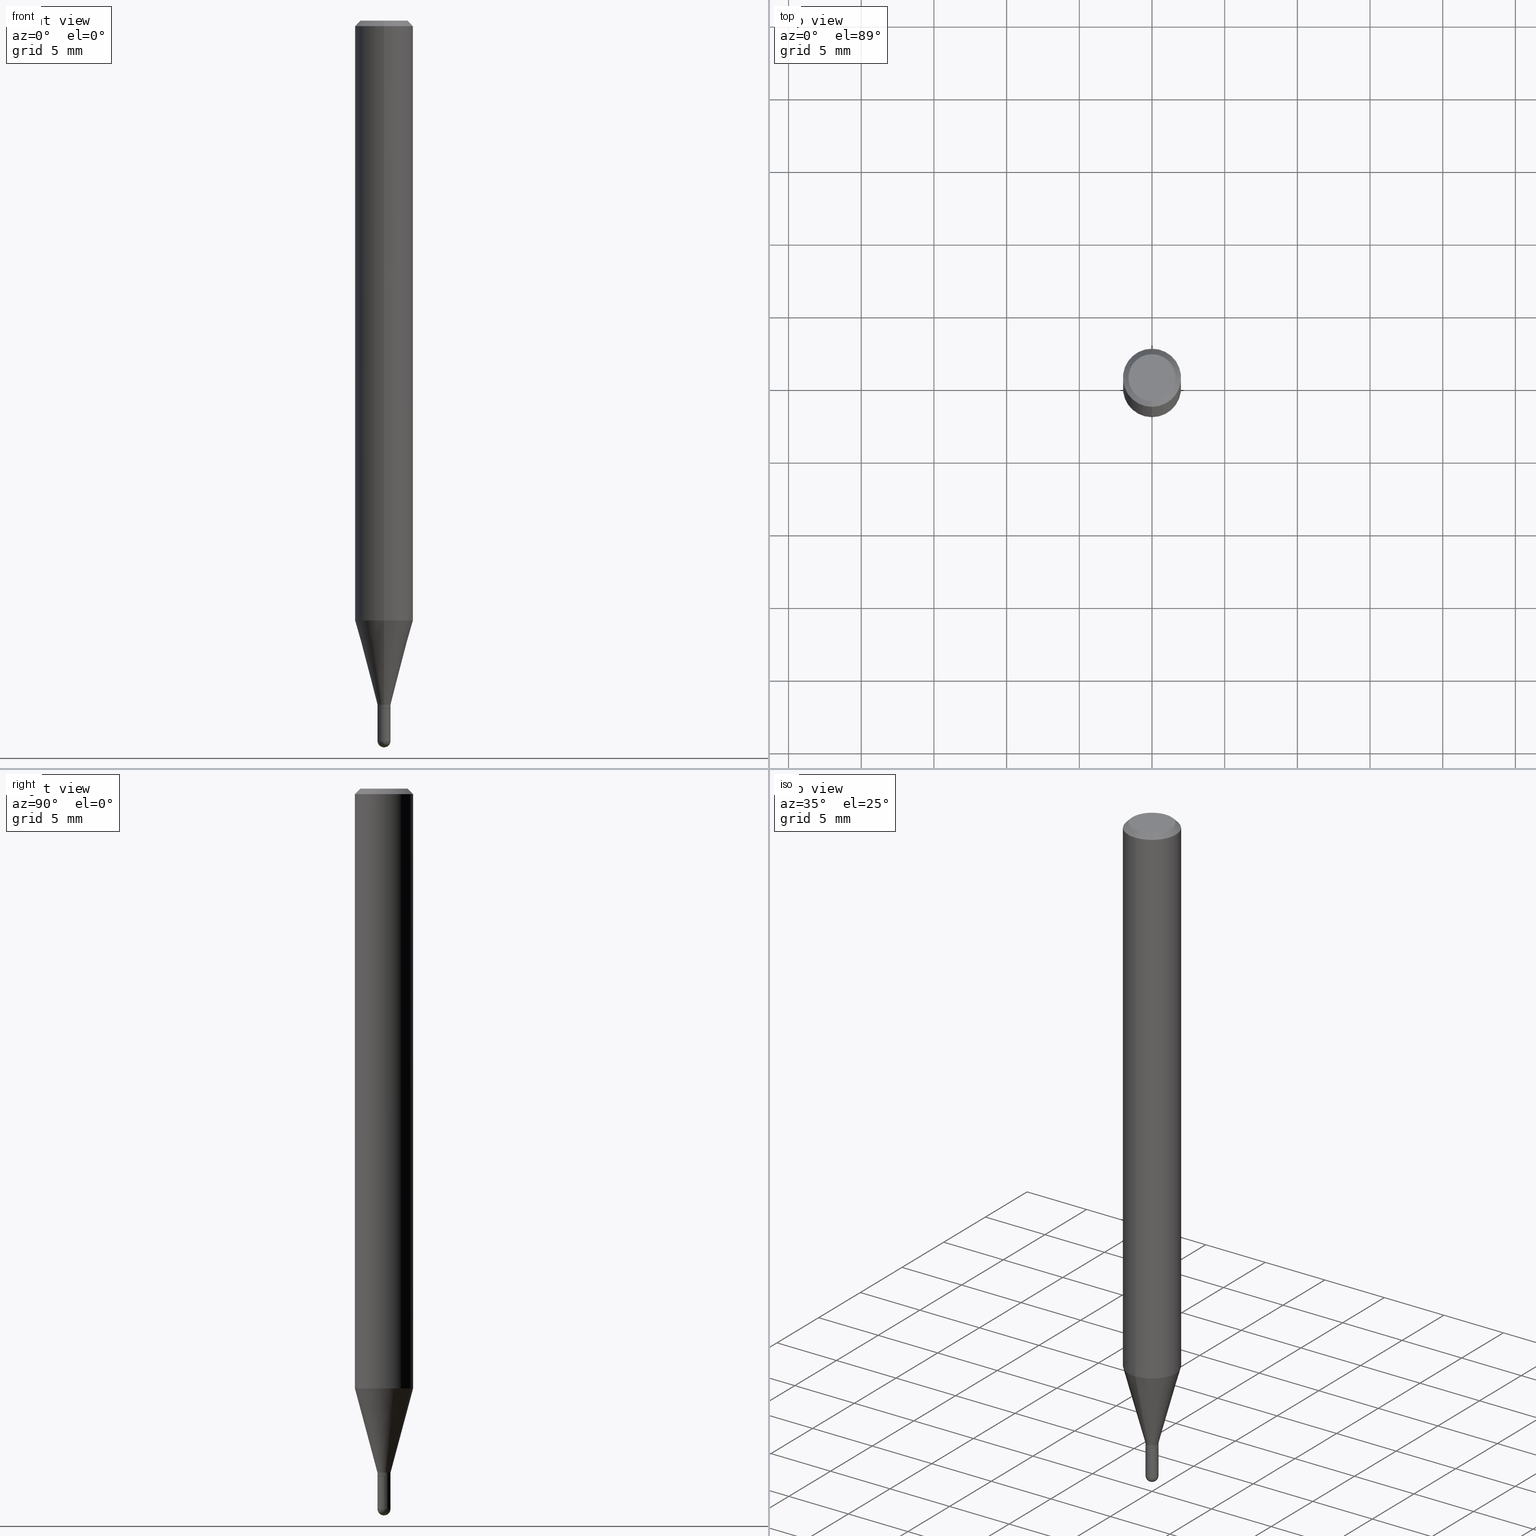
[diagram: canonical four-view strip — front | top / right | iso, engineering-drawing reading convention]
A machine part, canonical four-view strip (front | top / right | iso — engineering-drawing reading convention). The complete STEP part file that produces these views, byte-faithful:
ISO-10303-21;
HEADER;
FILE_DESCRIPTION (( 'STEP AP203' ),
    '1' );
FILE_NAME ('02052.STEP',
    '2024-03-07T20:01:09',
    ( '' ),
    ( '' ),
    'SwSTEP 2.0',
    'SolidWorks 2023',
    '' );
FILE_SCHEMA (( 'CONFIG_CONTROL_DESIGN' ));
ENDSEC;

DATA;
#1 = CARTESIAN_POINT ( 'NONE',  ( -5.749253660339158173E-45, 8.208497746846743478E-31, 2.350994683723575538E-16 ) ) ;
#2 = DIRECTION ( 'NONE',  ( -6.982962677686264344E-15, -1.000000000000000000, 3.491499918598658071E-15 ) ) ;
#3 = DIRECTION ( 'NONE',  ( -2.445455832011205727E-29, 3.491499918598658860E-15, 1.000000000000000000 ) ) ;
#4 = DIRECTION ( 'NONE',  ( -2.445455832011205727E-29, 3.491499918598658860E-15, 1.000000000000000000 ) ) ;
#5 = EDGE_CURVE ( 'NONE', #324, #271, #53, .T. ) ;
#6 =( GEOMETRIC_REPRESENTATION_CONTEXT ( 3 ) GLOBAL_UNCERTAINTY_ASSIGNED_CONTEXT ( ( #355 ) ) GLOBAL_UNIT_ASSIGNED_CONTEXT ( ( #300, #342, #496 ) ) REPRESENTATION_CONTEXT ( 'NONE', 'WORKASPACE' ) );
#7 = ORIENTED_EDGE ( 'NONE', *, *, #509, .F. ) ;
#8 = DIRECTION ( 'NONE',  ( 6.982962677686264344E-15, 1.000000000000000000, -3.496114991891765576E-15 ) ) ;
#9 = EDGE_LOOP ( 'NONE', ( #208, #63, #213, #365, #284 ) ) ;
#10 = APPROVAL_DATE_TIME ( #449, #211 ) ;
#11 = ORIENTED_EDGE ( 'NONE', *, *, #214, .F. ) ;
#12 = AXIS2_PLACEMENT_3D ( 'NONE', #387, #75, #33 ) ;
#13 = CARTESIAN_POINT ( 'NONE',  ( 0.000000000000000000, 0.000000000000000000, 0.000000000000000000 ) ) ;
#14 = LOCAL_TIME ( 15, 1, 9.000000000000000000, #232 ) ;
#15 = ORIENTED_EDGE ( 'NONE', *, *, #214, .T. ) ;
#16 = LINE ( 'NONE', #411, #176 ) ;
#17 = CARTESIAN_POINT ( 'NONE',  ( 4.553927850371266907E-29, -6.501871148414421797E-15, -1.862199999999999855 ) ) ;
#18 = EDGE_CURVE ( 'NONE', #103, #250, #317, .T. ) ;
#19 = ORIENTED_EDGE ( 'NONE', *, *, #227, .T. ) ;
#20 = EDGE_CURVE ( 'NONE', #512, #138, #277, .T. ) ;
#21 = ORIENTED_EDGE ( 'NONE', *, *, #405, .T. ) ;
#22 = VECTOR ( 'NONE', #116, 39.37007874015748143 ) ;
#23 = FACE_OUTER_BOUND ( 'NONE', #288, .T. ) ;
#24 = VECTOR ( 'NONE', #245, 39.37007874015748854 ) ;
#25 = CARTESIAN_POINT ( 'NONE',  ( 0.01770000000000000046, -6.780107611899503773E-15, -1.950799999999999867 ) ) ;
#26 = DIRECTION ( 'NONE',  ( -2.445455832011205727E-29, 3.491499918598658860E-15, 1.000000000000000000 ) ) ;
#27 = DIRECTION ( 'NONE',  ( 0.000000000000000000, 0.000000000000000000, 1.000000000000000000 ) ) ;
#28 = DIRECTION ( 'NONE',  ( -2.445455832011205727E-29, 3.491499918598658860E-15, 1.000000000000000000 ) ) ;
#29 = DATE_AND_TIME ( #394, #397 ) ;
#30 = VECTOR ( 'NONE', #122, 39.37007874015748143 ) ;
#31 = CONICAL_SURFACE ( 'NONE', #191, 0.01720000000000000001, 0.7853981633980202659 ) ;
#32 = DIRECTION ( 'NONE',  ( -2.445468806185136597E-29, 3.491481338843145583E-15, 1.000000000000000000 ) ) ;
#33 = DIRECTION ( 'NONE',  ( -6.982962677686266711E-15, -1.000000000000000000, 0.000000000000000000 ) ) ;
#34 = EDGE_CURVE ( 'NONE', #409, #386, #326, .T. ) ;
#35 = PERSON_AND_ORGANIZATION_ROLE ( 'creator' ) ;
#36 = DIRECTION ( 'NONE',  ( -2.445455832011205727E-29, 3.491499918598658860E-15, 1.000000000000000000 ) ) ;
#37 = EDGE_CURVE ( 'NONE', #43, #324, #501, .T. ) ;
#38 = CIRCLE ( 'NONE', #199, 0.07875000000000000056 ) ;
#39 = DIRECTION ( 'NONE',  ( -6.982962677686265922E-15, -1.000000000000000000, 3.491499918598658860E-15 ) ) ;
#40 = CC_DESIGN_DATE_AND_TIME_ASSIGNMENT ( #302, #385, ( #321 ) ) ;
#41 = CYLINDRICAL_SURFACE ( 'NONE', #175, 0.07875000000000000056 ) ;
#42 = DIRECTION ( 'NONE',  ( -6.982962677686265922E-15, -1.000000000000000000, 0.000000000000000000 ) ) ;
#43 = VERTEX_POINT ( 'NONE', #159 ) ;
#44 = ADVANCED_FACE ( 'NONE', ( #320 ), #41, .T. ) ;
#45 = CARTESIAN_POINT ( 'NONE',  ( 4.769106902774117401E-29, -6.813349420649699799E-15, -1.950800000000000090 ) ) ;
#46 = DIRECTION ( 'NONE',  ( -6.982962677686265922E-15, -1.000000000000000000, 0.000000000000000000 ) ) ;
#47 = PRODUCT ( '02052', '02052', '', ( #65 ) ) ;
#48 = AXIS2_PLACEMENT_3D ( 'NONE', #171, #182, #106 ) ;
#49 = DESIGN_CONTEXT ( 'detailed design', #50, 'design' ) ;
#50 = APPLICATION_CONTEXT ( 'configuration controlled 3d designs of mechanical parts and assemblies' ) ;
#51 = FACE_OUTER_BOUND ( 'NONE', #94, .T. ) ;
#52 = ORIENTED_EDGE ( 'NONE', *, *, #20, .F. ) ;
#53 = LINE ( 'NONE', #371, #30 ) ;
#54 = CALENDAR_DATE ( 2024, 7, 3 ) ;
#55 = ORIENTED_EDGE ( 'NONE', *, *, #5, .F. ) ;
#56 = DIRECTION ( 'NONE',  ( -2.445468806185136597E-29, 3.491481338843145583E-15, 1.000000000000000000 ) ) ;
#57 = AXIS2_PLACEMENT_3D ( 'NONE', #389, #428, #71 ) ;
#58 = EDGE_LOOP ( 'NONE', ( #414, #484, #21, #294 ) ) ;
#59 = AXIS2_PLACEMENT_3D ( 'NONE', #289, #491, #140 ) ;
#60 = ORIENTED_EDGE ( 'NONE', *, *, #295, .T. ) ;
#61 = DIRECTION ( 'NONE',  ( 1.000000000000000000, -6.982962677686265922E-15, 4.876176775795935232E-29 ) ) ;
#62 = EDGE_CURVE ( 'NONE', #448, #409, #113, .T. ) ;
#63 = ORIENTED_EDGE ( 'NONE', *, *, #90, .T. ) ;
#64 = DIRECTION ( 'NONE',  ( 6.982962677686265922E-15, 1.000000000000000000, 0.000000000000000000 ) ) ;
#65 = MECHANICAL_CONTEXT ( 'NONE', #193, 'mechanical' ) ;
#66 = CONICAL_SURFACE ( 'NONE', #230, 0.07875000000000000056, 0.7853981633974483900 ) ;
#67 = SECURITY_CLASSIFICATION_LEVEL ( 'unclassified' ) ;
#68 = DIRECTION ( 'NONE',  ( -6.982962677686265922E-15, -1.000000000000000000, 3.491499918598659255E-15 ) ) ;
#69 = DIRECTION ( 'NONE',  ( 6.982962677686265922E-15, 1.000000000000000000, -3.491499918598658860E-15 ) ) ;
#70 = LINE ( 'NONE', #188, #413 ) ;
#71 = DIRECTION ( 'NONE',  ( 1.000000000000000000, -6.982962677686271444E-15, 0.000000000000000000 ) ) ;
#72 = AXIS2_PLACEMENT_3D ( 'NONE', #308, #32, #80 ) ;
#73 = EDGE_LOOP ( 'NONE', ( #358, #341, #439, #249 ) ) ;
#74 = VECTOR ( 'NONE', #361, 39.37007874015748143 ) ;
#75 = DIRECTION ( 'NONE',  ( -2.445455832011205727E-29, 3.491499918598658860E-15, 1.000000000000000000 ) ) ;
#76 = PERSON_AND_ORGANIZATION ( #165, #331 ) ;
#77 = ADVANCED_FACE ( 'NONE', ( #51 ), #164, .T. ) ;
#78 = CARTESIAN_POINT ( 'NONE',  ( 0.000000000000000000, 0.000000000000000000, 0.000000000000000000 ) ) ;
#79 = DIRECTION ( 'NONE',  ( -2.445455832011205727E-29, 3.491499918598658860E-15, 1.000000000000000000 ) ) ;
#80 = DIRECTION ( 'NONE',  ( 1.000000000000000000, -6.982962677686265922E-15, 4.876176775795935232E-29 ) ) ;
#81 = EDGE_LOOP ( 'NONE', ( #166, #153, #445, #494, #162 ) ) ;
#82 = CARTESIAN_POINT ( 'NONE',  ( 5.595524044111183434E-16, 0.07874999999999431066, -1.624658298197920070 ) ) ;
#83 = VECTOR ( 'NONE', #485, 39.37007874015748143 ) ;
#84 = CC_DESIGN_SECURITY_CLASSIFICATION ( #321, ( #184 ) ) ;
#85 = ADVANCED_FACE ( 'NONE', ( #367 ), #412, .T. ) ;
#86 = ORIENTED_EDGE ( 'NONE', *, *, #185, .T. ) ;
#87 = CARTESIAN_POINT ( 'NONE',  ( -5.749253660339158173E-45, 8.208497746846743478E-31, 2.350994683723575538E-16 ) ) ;
#88 = DIRECTION ( 'NONE',  ( -2.445455832011205727E-29, 3.491499918598658860E-15, 1.000000000000000000 ) ) ;
#89 = VERTEX_POINT ( 'NONE', #299 ) ;
#90 = EDGE_CURVE ( 'NONE', #99, #377, #319, .T. ) ;
#91 = CIRCLE ( 'NONE', #127, 0.07875000000000000056 ) ;
#92 = AXIS2_PLACEMENT_3D ( 'NONE', #226, #194, #468 ) ;
#93 = LINE ( 'NONE', #240, #83 ) ;
#94 = EDGE_LOOP ( 'NONE', ( #204, #481, #408, #129 ) ) ;
#95 = CARTESIAN_POINT ( 'NONE',  ( 5.499083108677937401E-16, 0.07874999999999994504, -0.01500000000000004108 ) ) ;
#96 = ORIENTED_EDGE ( 'NONE', *, *, #509, .T. ) ;
#97 = DIRECTION ( 'NONE',  ( 6.982962677686264344E-15, 1.000000000000000000, -3.496114991891765576E-15 ) ) ;
#98 = FACE_OUTER_BOUND ( 'NONE', #58, .T. ) ;
#99 = VERTEX_POINT ( 'NONE', #301 ) ;
#100 = CONICAL_SURFACE ( 'NONE', #12, 0.01769999999999965351, 0.2617993877991506846 ) ;
#101 = CARTESIAN_POINT ( 'NONE',  ( 5.595524044111186392E-16, 0.07874999999999994504, -0.01500000000000004108 ) ) ;
#102 = COORDINATED_UNIVERSAL_TIME_OFFSET ( 5, 0, .BEHIND. ) ;
#103 = VERTEX_POINT ( 'NONE', #25 ) ;
#104 = EDGE_LOOP ( 'NONE', ( #469, #202, #471, #282 ) ) ;
#105 = CARTESIAN_POINT ( 'NONE',  ( 3.973030110353503053E-29, -5.672494315908672324E-15, -1.624658298197919848 ) ) ;
#106 = DIRECTION ( 'NONE',  ( 1.000000000000000000, -6.982962677686271444E-15, 0.000000000000000000 ) ) ;
#107 = AXIS2_PLACEMENT_3D ( 'NONE', #78, #27, #234 ) ;
#108 = PERSON_AND_ORGANIZATION ( #165, #331 ) ;
#109 = CARTESIAN_POINT ( 'NONE',  ( 4.769106902774117401E-29, -6.813349420649699799E-15, -1.950800000000000090 ) ) ;
#110 = LENGTH_MEASURE_WITH_UNIT ( LENGTH_MEASURE( 0.02539999999999999897 ), #303 );
#111 = PLANE ( 'NONE',  #92 ) ;
#112 = EDGE_CURVE ( 'NONE', #386, #138, #38, .T. ) ;
#113 = CIRCLE ( 'NONE', #157, 0.06375000000000000111 ) ;
#114 = COORDINATED_UNIVERSAL_TIME_OFFSET ( 5, 0, .BEHIND. ) ;
#115 = CIRCLE ( 'NONE', #382, 0.01720000000000000001 ) ;
#116 = DIRECTION ( 'NONE',  ( -2.445455832011205727E-29, 3.491499918598658860E-15, 1.000000000000000000 ) ) ;
#117 = CARTESIAN_POINT ( 'NONE',  ( 4.553927850371266907E-29, -6.501871148414421797E-15, -1.862199999999999855 ) ) ;
#118 = VERTEX_POINT ( 'NONE', #447 ) ;
#119 = CARTESIAN_POINT ( 'NONE',  ( 1.257660642295371938E-16, 0.01769999999999992760, -6.179954855919601467E-17 ) ) ;
#120 = AXIS2_PLACEMENT_3D ( 'NONE', #260, #145, #69 ) ;
#121 = CIRCLE ( 'NONE', #207, 0.01769999999999965351 ) ;
#122 = DIRECTION ( 'NONE',  ( -2.445455832011205727E-29, 3.491499918598658860E-15, 1.000000000000000000 ) ) ;
#123 = CARTESIAN_POINT ( 'NONE',  ( 4.553927850371267468E-29, -6.501871148414422586E-15, -1.862200000000000077 ) ) ;
#124 = DIRECTION ( 'NONE',  ( 2.445455832011205727E-29, -3.491499918598658860E-15, -1.000000000000000000 ) ) ;
#125 = ADVANCED_FACE ( 'NONE', ( #98 ), #353, .T. ) ;
#126 = CARTESIAN_POINT ( 'NONE',  ( 4.769106902774117401E-29, -6.813349420649699799E-15, -1.950800000000000090 ) ) ;
#127 = AXIS2_PLACEMENT_3D ( 'NONE', #278, #88, #438 ) ;
#128 = AXIS2_PLACEMENT_3D ( 'NONE', #179, #28, #298 ) ;
#129 = ORIENTED_EDGE ( 'NONE', *, *, #360, .F. ) ;
#130 = ORIENTED_EDGE ( 'NONE', *, *, #477, .F. ) ;
#131 = PERSON_AND_ORGANIZATION ( #165, #331 ) ;
#132 = DIMENSIONAL_EXPONENTS ( 1.000000000000000000, 0.000000000000000000, 0.000000000000000000, 0.000000000000000000, 0.000000000000000000, 0.000000000000000000, 0.000000000000000000 ) ;
#133 = ADVANCED_FACE ( 'NONE', ( #424 ), #500, .F. ) ;
#134 = ORIENTED_EDGE ( 'NONE', *, *, #429, .T. ) ;
#135 = CARTESIAN_POINT ( 'NONE',  ( 3.668183748016751084E-31, -5.237249877897906520E-17, -0.01499999999999976526 ) ) ;
#136 = DIRECTION ( 'NONE',  ( -2.445455832011205727E-29, 3.491499918598658860E-15, 1.000000000000000000 ) ) ;
#137 = LOCAL_TIME ( 15, 1, 9.000000000000000000, #460 ) ;
#138 = VERTEX_POINT ( 'NONE', #304 ) ;
#139 = CC_DESIGN_APPROVAL ( #266, ( #184 ) ) ;
#140 = DIRECTION ( 'NONE',  ( 1.000000000000000000, -6.982962677686271444E-15, 0.000000000000000000 ) ) ;
#141 = ORIENTED_EDGE ( 'NONE', *, *, #201, .T. ) ;
#142 = DIRECTION ( 'NONE',  ( -6.982962677686265922E-15, -1.000000000000000000, 3.491499918598659255E-15 ) ) ;
#143 = DIRECTION ( 'NONE',  ( -1.807323732225332900E-15, -0.2588190451025185745, 0.9659258262890689783 ) ) ;
#144 = DIRECTION ( 'NONE',  ( -2.445455832011205727E-29, 3.491499918598658860E-15, 1.000000000000000000 ) ) ;
#145 = DIRECTION ( 'NONE',  ( 2.445455832011205166E-29, -3.491499918598658860E-15, -1.000000000000000000 ) ) ;
#146 = AXIS2_PLACEMENT_3D ( 'NONE', #105, #307, #183 ) ;
#147 = APPROVAL_DATE_TIME ( #29, #266 ) ;
#148 = DIRECTION ( 'NONE',  ( 1.000000000000000000, -6.982962677686271444E-15, 0.000000000000000000 ) ) ;
#149 = SPHERICAL_SURFACE ( 'NONE', #492, 0.01769999999999982351 ) ;
#150 = CARTESIAN_POINT ( 'NONE',  ( 4.769106902774117401E-29, -6.813349420649699799E-15, -1.950800000000000090 ) ) ;
#151 = CIRCLE ( 'NONE', #329, 0.01769999999999982351 ) ;
#152 = CARTESIAN_POINT ( 'NONE',  ( 4.770620547105964061E-29, -6.811181795815208114E-15, -1.950799999999999867 ) ) ;
#153 = ORIENTED_EDGE ( 'NONE', *, *, #391, .T. ) ;
#154 = DIRECTION ( 'NONE',  ( -2.445468806185136597E-29, 3.491481338843145583E-15, 1.000000000000000000 ) ) ;
#155 = CARTESIAN_POINT ( 'NONE',  ( 4.530206928800758471E-29, -6.468003599204014426E-15, -1.852500000000000036 ) ) ;
#156 = DIRECTION ( 'NONE',  ( -2.445455832011205727E-29, 3.491499918598658860E-15, 1.000000000000000000 ) ) ;
#157 = AXIS2_PLACEMENT_3D ( 'NONE', #87, #198, #323 ) ;
#158 = AXIS2_PLACEMENT_3D ( 'NONE', #425, #144, #504 ) ;
#159 = CARTESIAN_POINT ( 'NONE',  ( 1.257660642295842296E-16, 0.01769999999999364096, -1.861700000000000355 ) ) ;
#160 = DIRECTION ( 'NONE',  ( 6.982962677686266711E-15, 1.000000000000000000, 0.000000000000000000 ) ) ;
#161 = MANIFOLD_SOLID_BREP ( 'Body-Move/Copy2[1]', #339 ) ;
#162 = ORIENTED_EDGE ( 'NONE', *, *, #477, .T. ) ;
#163 = LINE ( 'NONE', #296, #24 ) ;
#164 = SPHERICAL_SURFACE ( 'NONE', #490, 0.01769999999999982351 ) ;
#165 = PERSON ( 'UNSPECIFIED', 'UNSPECIFIED', 'UNSPECIFIED', ('UNSPECIFIED'), ('UNSPECIFIED'), ('UNSPECIFIED') ) ;
#166 = ORIENTED_EDGE ( 'NONE', *, *, #360, .T. ) ;
#167 = CC_DESIGN_PERSON_AND_ORGANIZATION_ASSIGNMENT ( #221, #35, ( #184 ) ) ;
#168 = AXIS2_PLACEMENT_3D ( 'NONE', #434, #36, #306 ) ;
#169 = AXIS2_PLACEMENT_3D ( 'NONE', #152, #154, #463 ) ;
#170 = EDGE_LOOP ( 'NONE', ( #297, #401, #130, #177 ) ) ;
#171 = CARTESIAN_POINT ( 'NONE',  ( 4.770620547105964061E-29, -6.811181795815208114E-15, -1.950799999999999867 ) ) ;
#172 = EDGE_CURVE ( 'NONE', #451, #250, #473, .T. ) ;
#173 = ORIENTED_EDGE ( 'NONE', *, *, #185, .F. ) ;
#174 = EDGE_LOOP ( 'NONE', ( #322, #376, #488, #225 ) ) ;
#175 = AXIS2_PLACEMENT_3D ( 'NONE', #479, #475, #2 ) ;
#176 = VECTOR ( 'NONE', #181, 39.37007874015748143 ) ;
#177 = ORIENTED_EDGE ( 'NONE', *, *, #267, .F. ) ;
#178 = CC_DESIGN_APPROVAL ( #457, ( #321 ) ) ;
#179 = CARTESIAN_POINT ( 'NONE',  ( 3.668183748016751084E-31, -5.237249877897906520E-17, -0.01499999999999976526 ) ) ;
#180 = EDGE_CURVE ( 'NONE', #250, #451, #347, .T. ) ;
#181 = DIRECTION ( 'NONE',  ( 1.839019923739603076E-15, 0.2588190451025253469, 0.9659258262890670910 ) ) ;
#182 = DIRECTION ( 'NONE',  ( -2.445468806185136597E-29, 3.491481338843145583E-15, 1.000000000000000000 ) ) ;
#183 = DIRECTION ( 'NONE',  ( -6.982962677686264344E-15, -1.000000000000000000, 3.469013325287953293E-15 ) ) ;
#184 = PRODUCT_DEFINITION_FORMATION_WITH_SPECIFIED_SOURCE ( 'ANY', '', #47, .NOT_KNOWN. ) ;
#185 = EDGE_CURVE ( 'NONE', #512, #238, #91, .T. ) ;
#186 = DIRECTION ( 'NONE',  ( 5.024295867790934632E-15, 0.7071067811869542474, 0.7071067811861405650 ) ) ;
#187 = CARTESIAN_POINT ( 'NONE',  ( -1.235984393949991886E-16, -0.01770000000000612403, -1.852500000000000036 ) ) ;
#188 = CARTESIAN_POINT ( 'NONE',  ( 1.222133505507827641E-16, 0.01719999999999349827, -1.862199999999999855 ) ) ;
#189 = APPROVAL_ROLE ( '' ) ;
#190 = DIRECTION ( 'NONE',  ( -1.000000000000000000, 7.105427357601001070E-15, -4.926315508542082329E-29 ) ) ;
#191 = AXIS2_PLACEMENT_3D ( 'NONE', #423, #217, #344 ) ;
#192 = DIRECTION ( 'NONE',  ( -2.445455832011205727E-29, 3.491499918598658860E-15, 1.000000000000000000 ) ) ;
#193 = APPLICATION_CONTEXT ( 'configuration controlled 3d designs of mechanical parts and assemblies' ) ;
#194 = DIRECTION ( 'NONE',  ( 2.438088387897960049E-29, -3.491481338843145188E-15, -1.000000000000000000 ) ) ;
#195 = EDGE_LOOP ( 'NONE', ( #7, #379 ) ) ;
#196 = DIRECTION ( 'NONE',  ( -2.445468806185136877E-29, 3.491481338843145188E-15, 1.000000000000000000 ) ) ;
#197 = ADVANCED_FACE ( 'NONE', ( #236 ), #476, .F. ) ;
#198 = DIRECTION ( 'NONE',  ( -2.445455832011205727E-29, 3.491499918598658860E-15, 1.000000000000000000 ) ) ;
#199 = AXIS2_PLACEMENT_3D ( 'NONE', #497, #486, #286 ) ;
#200 = AXIS2_PLACEMENT_3D ( 'NONE', #13, #56, #61 ) ;
#201 = EDGE_CURVE ( 'NONE', #118, #43, #70, .T. ) ;
#202 = ORIENTED_EDGE ( 'NONE', *, *, #37, .T. ) ;
#203 = SHAPE_DEFINITION_REPRESENTATION ( #478, #383 ) ;
#204 = ORIENTED_EDGE ( 'NONE', *, *, #337, .F. ) ;
#205 = CARTESIAN_POINT ( 'NONE',  ( 4.975360907851465623E-16, 0.06375000000000000111, 1.251634856169306932E-17 ) ) ;
#206 = PERSON_AND_ORGANIZATION_ROLE ( 'creator' ) ;
#207 = AXIS2_PLACEMENT_3D ( 'NONE', #155, #396, #359 ) ;
#208 = ORIENTED_EDGE ( 'NONE', *, *, #391, .F. ) ;
#209 = EDGE_LOOP ( 'NONE', ( #443, #418, #373, #332 ) ) ;
#210 = CARTESIAN_POINT ( 'NONE',  ( -1.257660642294893938E-16, -0.01770000000000672424, -1.950799999999999867 ) ) ;
#211 = APPROVAL ( #493, 'UNSPECIFIED' ) ;
#212 = ADVANCED_FACE ( 'NONE', ( #395 ), #350, .T. ) ;
#213 = ORIENTED_EDGE ( 'NONE', *, *, #267, .T. ) ;
#214 = EDGE_CURVE ( 'NONE', #324, #43, #264, .T. ) ;
#215 = CARTESIAN_POINT ( 'NONE',  ( 4.770620547105964061E-29, -6.811181795815208114E-15, -1.950799999999999867 ) ) ;
#216 = PERSON_AND_ORGANIZATION ( #165, #331 ) ;
#217 = DIRECTION ( 'NONE',  ( -2.445455832011205727E-29, 3.491499918598658860E-15, 1.000000000000000000 ) ) ;
#218 = CARTESIAN_POINT ( 'NONE',  ( 4.553927850371266907E-29, -6.501871148414421797E-15, -1.862199999999999855 ) ) ;
#219 = DIRECTION ( 'NONE',  ( 1.000000000000000000, -6.982962677686271444E-15, 0.000000000000000000 ) ) ;
#220 = EDGE_CURVE ( 'NONE', #238, #386, #315, .T. ) ;
#221 = PERSON_AND_ORGANIZATION ( #165, #331 ) ;
#222 = DIRECTION ( 'NONE',  ( -2.445455832011205727E-29, 3.491499918598658860E-15, 1.000000000000000000 ) ) ;
#223 = VECTOR ( 'NONE', #4, 39.37007874015748143 ) ;
#224 = VECTOR ( 'NONE', #3, 39.37007874015748143 ) ;
#225 = ORIENTED_EDGE ( 'NONE', *, *, #112, .T. ) ;
#226 = CARTESIAN_POINT ( 'NONE',  ( 1.235984393950924467E-16, 0.01769999999999349871, -1.862200000000000077 ) ) ;
#227 = EDGE_CURVE ( 'NONE', #409, #448, #309, .T. ) ;
#228 = LINE ( 'NONE', #119, #224 ) ;
#229 = AXIS2_PLACEMENT_3D ( 'NONE', #455, #343, #142 ) ;
#230 = AXIS2_PLACEMENT_3D ( 'NONE', #251, #325, #97 ) ;
#231 = FACE_OUTER_BOUND ( 'NONE', #209, .T. ) ;
#232 = COORDINATED_UNIVERSAL_TIME_OFFSET ( 5, 0, .BEHIND. ) ;
#233 = VERTEX_POINT ( 'NONE', #349 ) ;
#234 = DIRECTION ( 'NONE',  ( 1.000000000000000000, 0.000000000000000000, 0.000000000000000000 ) ) ;
#235 = EDGE_CURVE ( 'NONE', #89, #377, #151, .T. ) ;
#236 = FACE_OUTER_BOUND ( 'NONE', #195, .T. ) ;
#237 = EDGE_LOOP ( 'NONE', ( #273, #134, #173, #316 ) ) ;
#238 = VERTEX_POINT ( 'NONE', #82 ) ;
#239 = CIRCLE ( 'NONE', #158, 0.01769999999999965351 ) ;
#240 = CARTESIAN_POINT ( 'NONE',  ( -5.402642173245076924E-16, -0.07875000000000004219, -0.01499999999999948944 ) ) ;
#241 = PERSON_AND_ORGANIZATION ( #165, #331 ) ;
#242 = VERTEX_POINT ( 'NONE', #433 ) ;
#243 = DIRECTION ( 'NONE',  ( -1.000000000000000000, 6.982962677686265922E-15, -4.883557194083112901E-29 ) ) ;
#244 = EDGE_LOOP ( 'NONE', ( #86, #313, #357, #52 ) ) ;
#245 = DIRECTION ( 'NONE',  ( -4.937700262167370586E-15, -0.7071067811869493624, 0.7071067811861454500 ) ) ;
#246 = DATE_AND_TIME ( #287, #348 ) ;
#247 = AXIS2_PLACEMENT_3D ( 'NONE', #17, #136, #290 ) ;
#248 = AXIS2_PLACEMENT_3D ( 'NONE', #435, #79, #312 ) ;
#249 = ORIENTED_EDGE ( 'NONE', *, *, #112, .F. ) ;
#250 = VERTEX_POINT ( 'NONE', #352 ) ;
#251 = CARTESIAN_POINT ( 'NONE',  ( 3.668183748016751084E-31, -5.237249877897906520E-17, -0.01499999999999976526 ) ) ;
#252 = ADVANCED_FACE ( 'NONE', ( #231 ), #280, .T. ) ;
#253 = EDGE_LOOP ( 'NONE', ( #96, #141, #11, #375 ) ) ;
#254 = DIRECTION ( 'NONE',  ( -2.445455832011205727E-29, 3.491499918598658860E-15, 1.000000000000000000 ) ) ;
#255 = CC_DESIGN_PERSON_AND_ORGANIZATION_ASSIGNMENT ( #241, #334, ( #47 ) ) ;
#256 = AXIS2_PLACEMENT_3D ( 'NONE', #459, #426, #219 ) ;
#257 = AXIS2_PLACEMENT_3D ( 'NONE', #218, #26, #419 ) ;
#258 = APPROVAL_STATUS ( 'not_yet_approved' ) ;
#259 = ADVANCED_FACE ( 'NONE', ( #268 ), #470, .T. ) ;
#260 = CARTESIAN_POINT ( 'NONE',  ( 4.451638707024993845E-16, 0.06375000000000000111, -1.050333856244857091E-16 ) ) ;
#261 = DIRECTION ( 'NONE',  ( 6.982962677686265922E-15, 1.000000000000000000, 0.000000000000000000 ) ) ;
#262 = APPROVAL_ROLE ( '' ) ;
#263 = FACE_OUTER_BOUND ( 'NONE', #170, .T. ) ;
#264 = CIRCLE ( 'NONE', #291, 0.01770000000000019821 ) ;
#265 = CARTESIAN_POINT ( 'NONE',  ( -4.888104823412213911E-16, -0.06375000000000000111, 4.576825881830220029E-16 ) ) ;
#266 = APPROVAL ( #346, 'UNSPECIFIED' ) ;
#267 = EDGE_CURVE ( 'NONE', #377, #103, #466, .T. ) ;
#268 = FACE_OUTER_BOUND ( 'NONE', #73, .T. ) ;
#269 = ADVANCED_FACE ( 'NONE', ( #362 ), #111, .F. ) ;
#270 = DIRECTION ( 'NONE',  ( -2.445455832011205727E-29, 3.491499918598658860E-15, 1.000000000000000000 ) ) ;
#271 = VERTEX_POINT ( 'NONE', #392 ) ;
#272 = CARTESIAN_POINT ( 'NONE',  ( 4.552705122455261699E-29, -6.500125398455123415E-15, -1.861700000000000355 ) ) ;
#273 = ORIENTED_EDGE ( 'NONE', *, *, #437, .T. ) ;
#274 = ORIENTED_EDGE ( 'NONE', *, *, #62, .T. ) ;
#275 = LOCAL_TIME ( 15, 1, 9.000000000000000000, #487 ) ;
#276 = EDGE_CURVE ( 'NONE', #118, #452, #115, .T. ) ;
#277 = LINE ( 'NONE', #403, #223 ) ;
#278 = CARTESIAN_POINT ( 'NONE',  ( 3.973030110353503053E-29, -5.672494315908672324E-15, -1.624658298197919848 ) ) ;
#279 = ORIENTED_EDGE ( 'NONE', *, *, #437, .F. ) ;
#280 = CONICAL_SURFACE ( 'NONE', #168, 0.01769999999999965351, 0.2617993877991506846 ) ;
#281 = AXIS2_PLACEMENT_3D ( 'NONE', #135, #124, #8 ) ;
#282 = ORIENTED_EDGE ( 'NONE', *, *, #311, .F. ) ;
#283 = ORIENTED_EDGE ( 'NONE', *, *, #62, .F. ) ;
#284 = ORIENTED_EDGE ( 'NONE', *, *, #172, .F. ) ;
#285 = DIRECTION ( 'NONE',  ( -2.445468806185136877E-29, 3.491481338843145188E-15, 1.000000000000000000 ) ) ;
#286 = DIRECTION ( 'NONE',  ( -6.982962677686264344E-15, -1.000000000000000000, 3.496114991891765576E-15 ) ) ;
#287 = CALENDAR_DATE ( 2024, 7, 3 ) ;
#288 = EDGE_LOOP ( 'NONE', ( #15, #60, #279, #55 ) ) ;
#289 = CARTESIAN_POINT ( 'NONE',  ( 4.770620547105964061E-29, -6.811181795815208114E-15, -1.950799999999999867 ) ) ;
#290 = DIRECTION ( 'NONE',  ( -6.982962677686266711E-15, -1.000000000000000000, 0.000000000000000000 ) ) ;
#291 = AXIS2_PLACEMENT_3D ( 'NONE', #272, #222, #42 ) ;
#292 = CLOSED_SHELL ( 'NONE', ( #502, #462, #410, #44, #328, #252, #259, #368, #133, #197, #125, #85 ) ) ;
#293 = APPROVAL_PERSON_ORGANIZATION ( #330, #211, #406 ) ;
#294 = ORIENTED_EDGE ( 'NONE', *, *, #37, .F. ) ;
#295 = EDGE_CURVE ( 'NONE', #43, #242, #228, .T. ) ;
#296 = CARTESIAN_POINT ( 'NONE',  ( -1.201069580561582522E-16, -0.01720000000000650175, -1.862199999999999855 ) ) ;
#297 = ORIENTED_EDGE ( 'NONE', *, *, #235, .F. ) ;
#298 = DIRECTION ( 'NONE',  ( -6.982962677686264344E-15, -1.000000000000000000, 3.496114991891765576E-15 ) ) ;
#299 = CARTESIAN_POINT ( 'NONE',  ( 4.813148522809517103E-29, -6.874064827929977944E-15, -1.968500000000000139 ) ) ;
#300 =( CONVERSION_BASED_UNIT ( 'INCH', #110 ) LENGTH_UNIT ( ) NAMED_UNIT ( #132 ) );
#301 = CARTESIAN_POINT ( 'NONE',  ( -0.01770000000000000046, -6.530743108274918506E-15, -1.950799999999999867 ) ) ;
#302 = DATE_AND_TIME ( #498, #137 ) ;
#303 =( LENGTH_UNIT ( ) NAMED_UNIT ( * ) SI_UNIT ( $, .METRE. ) );
#304 = CARTESIAN_POINT ( 'NONE',  ( -5.499083108677930499E-16, -0.07875000000000004219, -0.01499999999999948944 ) ) ;
#305 = PERSON_AND_ORGANIZATION_ROLE ( 'design_supplier' ) ;
#306 = DIRECTION ( 'NONE',  ( -6.982962677686266711E-15, -1.000000000000000000, 0.000000000000000000 ) ) ;
#307 = DIRECTION ( 'NONE',  ( -2.445455832011205727E-29, 3.491499918598658860E-15, 1.000000000000000000 ) ) ;
#308 = CARTESIAN_POINT ( 'NONE',  ( 0.000000000000000000, 0.000000000000000000, 0.000000000000000000 ) ) ;
#309 = CIRCLE ( 'NONE', #381, 0.06375000000000000111 ) ;
#310 = CIRCLE ( 'NONE', #257, 0.01720000000000000001 ) ;
#311 = EDGE_CURVE ( 'NONE', #242, #271, #121, .T. ) ;
#312 = DIRECTION ( 'NONE',  ( -6.982962677686264344E-15, -1.000000000000000000, 3.491499918598658071E-15 ) ) ;
#313 = ORIENTED_EDGE ( 'NONE', *, *, #220, .T. ) ;
#314 = PRODUCT_RELATED_PRODUCT_CATEGORY ( 'detail', '', ( #47 ) ) ;
#315 = LINE ( 'NONE', #510, #22 ) ;
#316 = ORIENTED_EDGE ( 'NONE', *, *, #495, .F. ) ;
#317 = LINE ( 'NONE', #444, #480 ) ;
#318 = ADVANCED_FACE ( 'NONE', ( #263 ), #149, .T. ) ;
#319 = CIRCLE ( 'NONE', #48, 0.01770000000000000046 ) ;
#320 = FACE_OUTER_BOUND ( 'NONE', #244, .T. ) ;
#321 = SECURITY_CLASSIFICATION ( '', '', #67 ) ;
#322 = ORIENTED_EDGE ( 'NONE', *, *, #422, .F. ) ;
#323 = DIRECTION ( 'NONE',  ( -6.982962677686264344E-15, -1.000000000000000000, 3.491499918598658071E-15 ) ) ;
#324 = VERTEX_POINT ( 'NONE', #461 ) ;
#325 = DIRECTION ( 'NONE',  ( 2.445455832011205727E-29, -3.491499918598658860E-15, -1.000000000000000000 ) ) ;
#326 = LINE ( 'NONE', #95, #74 ) ;
#327 = EDGE_LOOP ( 'NONE', ( #283, #489, #430, #336 ) ) ;
#328 = ADVANCED_FACE ( 'NONE', ( #427 ), #100, .T. ) ;
#329 = AXIS2_PLACEMENT_3D ( 'NONE', #150, #190, #465 ) ;
#330 = PERSON_AND_ORGANIZATION ( #165, #331 ) ;
#331 = ORGANIZATION ( 'UNSPECIFIED', 'UNSPECIFIED', '' ) ;
#332 = ORIENTED_EDGE ( 'NONE', *, *, #467, .F. ) ;
#333 = CYLINDRICAL_SURFACE ( 'NONE', #200, 0.01770000000000000046 ) ;
#334 = PERSON_AND_ORGANIZATION_ROLE ( 'design_owner' ) ;
#335 = DATE_AND_TIME ( #54, #14 ) ;
#336 = ORIENTED_EDGE ( 'NONE', *, *, #34, .F. ) ;
#337 = EDGE_CURVE ( 'NONE', #89, #233, #421, .T. ) ;
#338 = EDGE_LOOP ( 'NONE', ( #416, #369 ) ) ;
#339 = CLOSED_SHELL ( 'NONE', ( #212, #77, #269, #318, #351 ) ) ;
#340 = CC_DESIGN_APPROVAL ( #211, ( #364 ) ) ;
#341 = ORIENTED_EDGE ( 'NONE', *, *, #467, .T. ) ;
#342 =( NAMED_UNIT ( * ) PLANE_ANGLE_UNIT ( ) SI_UNIT ( $, .RADIAN. ) );
#343 = DIRECTION ( 'NONE',  ( -2.445455832011205727E-29, 3.491499918598658860E-15, 1.000000000000000000 ) ) ;
#344 = DIRECTION ( 'NONE',  ( -6.982962677686266711E-15, -1.000000000000000000, 0.000000000000000000 ) ) ;
#345 = PERSON_AND_ORGANIZATION_ROLE ( 'classification_officer' ) ;
#346 = APPROVAL_STATUS ( 'not_yet_approved' ) ;
#347 = CIRCLE ( 'NONE', #256, 0.01770000000000000046 ) ;
#348 = LOCAL_TIME ( 15, 1, 9.000000000000000000, #102 ) ;
#349 = CARTESIAN_POINT ( 'NONE',  ( 1.235984393950939998E-16, 0.01769999999999310319, -1.950799999999999867 ) ) ;
#350 = CYLINDRICAL_SURFACE ( 'NONE', #72, 0.01770000000000000046 ) ;
#351 = ADVANCED_FACE ( 'NONE', ( #407 ), #333, .T. ) ;
#352 = CARTESIAN_POINT ( 'NONE',  ( 0.01770000000000000046, -6.625434988588753035E-15, -1.862200000000000077 ) ) ;
#353 = CONICAL_SURFACE ( 'NONE', #247, 0.01720000000000000001, 0.7853981633980202659 ) ;
#354 = CC_DESIGN_PERSON_AND_ORGANIZATION_ASSIGNMENT ( #216, #345, ( #321 ) ) ;
#355 = UNCERTAINTY_MEASURE_WITH_UNIT (LENGTH_MEASURE( 1.000000000000000082E-05 ), #300, 'distance_accuracy_value', 'NONE');
#356 = CIRCLE ( 'NONE', #128, 0.07875000000000000056 ) ;
#357 = ORIENTED_EDGE ( 'NONE', *, *, #440, .F. ) ;
#358 = ORIENTED_EDGE ( 'NONE', *, *, #220, .F. ) ;
#359 = DIRECTION ( 'NONE',  ( -6.982962677686266711E-15, -1.000000000000000000, 0.000000000000000000 ) ) ;
#360 = EDGE_CURVE ( 'NONE', #233, #99, #511, .T. ) ;
#361 = DIRECTION ( 'NONE',  ( 4.937700262164548042E-15, 0.7071067811865451302, -0.7071067811865499042 ) ) ;
#362 = FACE_OUTER_BOUND ( 'NONE', #338, .T. ) ;
#363 = CIRCLE ( 'NONE', #146, 0.07875000000000000056 ) ;
#364 = PRODUCT_DEFINITION ( 'UNKNOWN', '', #184, #49 ) ;
#365 = ORIENTED_EDGE ( 'NONE', *, *, #18, .T. ) ;
#366 = LINE ( 'NONE', #378, #402 ) ;
#367 = FACE_OUTER_BOUND ( 'NONE', #104, .T. ) ;
#368 = ADVANCED_FACE ( 'NONE', ( #446 ), #458, .T. ) ;
#369 = ORIENTED_EDGE ( 'NONE', *, *, #172, .T. ) ;
#370 = FACE_OUTER_BOUND ( 'NONE', #327, .T. ) ;
#371 = CARTESIAN_POINT ( 'NONE',  ( -1.235984393950463970E-16, -0.01769999999999992760, 6.179954855919601467E-17 ) ) ;
#372 = CALENDAR_DATE ( 2024, 7, 3 ) ;
#373 = ORIENTED_EDGE ( 'NONE', *, *, #495, .T. ) ;
#374 = CC_DESIGN_DATE_AND_TIME_ASSIGNMENT ( #246, #415, ( #364 ) ) ;
#375 = ORIENTED_EDGE ( 'NONE', *, *, #405, .F. ) ;
#376 = ORIENTED_EDGE ( 'NONE', *, *, #227, .F. ) ;
#377 = VERTEX_POINT ( 'NONE', #210 ) ;
#378 = CARTESIAN_POINT ( 'NONE',  ( -0.01770000000000000046, 1.257660642295377361E-16, -8.706515109751182648E-31 ) ) ;
#379 = ORIENTED_EDGE ( 'NONE', *, *, #276, .F. ) ;
#380 = FACE_OUTER_BOUND ( 'NONE', #253, .T. ) ;
#381 = AXIS2_PLACEMENT_3D ( 'NONE', #1, #192, #507 ) ;
#382 = AXIS2_PLACEMENT_3D ( 'NONE', #117, #270, #505 ) ;
#383 = ADVANCED_BREP_SHAPE_REPRESENTATION ( '02052', ( #161, #508, #107 ), #6 ) ;
#384 = CARTESIAN_POINT ( 'NONE',  ( 0.000000000000000000, 0.000000000000000000, 0.000000000000000000 ) ) ;
#385 = DATE_TIME_ROLE ( 'classification_date' ) ;
#386 = VERTEX_POINT ( 'NONE', #101 ) ;
#387 = CARTESIAN_POINT ( 'NONE',  ( 4.530206928800758471E-29, -6.468003599204014426E-15, -1.852500000000000036 ) ) ;
#388 = CARTESIAN_POINT ( 'NONE',  ( -5.499083108677539026E-16, -0.07875000000000567657, -1.624658298197919626 ) ) ;
#389 = CARTESIAN_POINT ( 'NONE',  ( 4.553952010877962015E-29, -6.501836549193706638E-15, -1.862200000000000077 ) ) ;
#390 = EDGE_LOOP ( 'NONE', ( #19, #274 ) ) ;
#391 = EDGE_CURVE ( 'NONE', #99, #451, #366, .T. ) ;
#392 = CARTESIAN_POINT ( 'NONE',  ( -1.235984393949991886E-16, -0.01770000000000612403, -1.852500000000000036 ) ) ;
#393 = APPLICATION_PROTOCOL_DEFINITION ( 'international standard', 'config_control_design', 1994, #193 ) ;
#394 = CALENDAR_DATE ( 2024, 7, 3 ) ;
#395 = FACE_OUTER_BOUND ( 'NONE', #81, .T. ) ;
#396 = DIRECTION ( 'NONE',  ( -2.445455832011205727E-29, 3.491499918598658860E-15, 1.000000000000000000 ) ) ;
#397 = LOCAL_TIME ( 15, 1, 9.000000000000000000, #114 ) ;
#398 = CARTESIAN_POINT ( 'NONE',  ( 4.552705122455261699E-29, -6.500125398455123415E-15, -1.861700000000000355 ) ) ;
#399 = DIRECTION ( 'NONE',  ( -2.445455832011205166E-29, 3.491499918598658860E-15, 1.000000000000000000 ) ) ;
#400 = AXIS2_PLACEMENT_3D ( 'NONE', #123, #399, #39 ) ;
#401 = ORIENTED_EDGE ( 'NONE', *, *, #337, .T. ) ;
#402 = VECTOR ( 'NONE', #285, 39.37007874015748143 ) ;
#403 = CARTESIAN_POINT ( 'NONE',  ( -5.499083108677933457E-16, -0.07875000000000000056, 2.749556185896443340E-16 ) ) ;
#404 = DIRECTION ( 'NONE',  ( 1.000000000000000000, -6.982962677686265922E-15, 4.883557194083112340E-29 ) ) ;
#405 = EDGE_CURVE ( 'NONE', #452, #324, #163, .T. ) ;
#406 = APPROVAL_ROLE ( '' ) ;
#407 = FACE_OUTER_BOUND ( 'NONE', #9, .T. ) ;
#408 = ORIENTED_EDGE ( 'NONE', *, *, #90, .F. ) ;
#409 = VERTEX_POINT ( 'NONE', #205 ) ;
#410 = ADVANCED_FACE ( 'NONE', ( #370 ), #66, .T. ) ;
#411 = CARTESIAN_POINT ( 'NONE',  ( 1.257660642295805565E-16, 0.01769999999999318646, -1.852500000000000036 ) ) ;
#412 = CYLINDRICAL_SURFACE ( 'NONE', #229, 0.01769999999999992760 ) ;
#413 = VECTOR ( 'NONE', #186, 39.37007874015748854 ) ;
#414 = ORIENTED_EDGE ( 'NONE', *, *, #201, .F. ) ;
#415 = DATE_TIME_ROLE ( 'creation_date' ) ;
#416 = ORIENTED_EDGE ( 'NONE', *, *, #180, .T. ) ;
#417 = CC_DESIGN_PERSON_AND_ORGANIZATION_ASSIGNMENT ( #131, #206, ( #364 ) ) ;
#418 = ORIENTED_EDGE ( 'NONE', *, *, #311, .T. ) ;
#419 = DIRECTION ( 'NONE',  ( -6.982962677686266711E-15, -1.000000000000000000, 0.000000000000000000 ) ) ;
#420 = PERSON_AND_ORGANIZATION ( #165, #331 ) ;
#421 = CIRCLE ( 'NONE', #441, 0.01769999999999982351 ) ;
#422 = EDGE_CURVE ( 'NONE', #448, #138, #93, .T. ) ;
#423 = CARTESIAN_POINT ( 'NONE',  ( 4.553927850371266907E-29, -6.501871148414421797E-15, -1.862199999999999855 ) ) ;
#424 = FACE_OUTER_BOUND ( 'NONE', #390, .T. ) ;
#425 = CARTESIAN_POINT ( 'NONE',  ( 4.530206928800758471E-29, -6.468003599204014426E-15, -1.852500000000000036 ) ) ;
#426 = DIRECTION ( 'NONE',  ( -2.445468806185136597E-29, 3.491481338843145583E-15, 1.000000000000000000 ) ) ;
#427 = FACE_OUTER_BOUND ( 'NONE', #237, .T. ) ;
#428 = DIRECTION ( 'NONE',  ( -2.445468806185136597E-29, 3.491481338843145583E-15, 1.000000000000000000 ) ) ;
#429 = EDGE_CURVE ( 'NONE', #242, #238, #16, .T. ) ;
#430 = ORIENTED_EDGE ( 'NONE', *, *, #440, .T. ) ;
#431 = DIRECTION ( 'NONE',  ( -1.000000000000000000, 6.982962677686265922E-15, -4.883557194083112901E-29 ) ) ;
#432 = APPROVAL_PERSON_ORGANIZATION ( #108, #457, #189 ) ;
#433 = CARTESIAN_POINT ( 'NONE',  ( 3.426592343203496595E-16, 0.01769999999999318646, -1.852500000000000036 ) ) ;
#434 = CARTESIAN_POINT ( 'NONE',  ( 4.530206928800758471E-29, -6.468003599204014426E-15, -1.852500000000000036 ) ) ;
#435 = CARTESIAN_POINT ( 'NONE',  ( 0.000000000000000000, 0.000000000000000000, 0.000000000000000000 ) ) ;
#436 = VECTOR ( 'NONE', #143, 39.37007874015748143 ) ;
#437 = EDGE_CURVE ( 'NONE', #271, #242, #239, .T. ) ;
#438 = DIRECTION ( 'NONE',  ( -6.982962677686264344E-15, -1.000000000000000000, 3.469013325287953293E-15 ) ) ;
#439 = ORIENTED_EDGE ( 'NONE', *, *, #20, .T. ) ;
#440 = EDGE_CURVE ( 'NONE', #138, #386, #356, .T. ) ;
#441 = AXIS2_PLACEMENT_3D ( 'NONE', #45, #404, #160 ) ;
#442 = APPROVAL_DATE_TIME ( #335, #457 ) ;
#443 = ORIENTED_EDGE ( 'NONE', *, *, #429, .F. ) ;
#444 = CARTESIAN_POINT ( 'NONE',  ( 0.01770000000000000046, -1.235984393950469147E-16, 8.630832893158805849E-31 ) ) ;
#445 = ORIENTED_EDGE ( 'NONE', *, *, #180, .F. ) ;
#446 = FACE_OUTER_BOUND ( 'NONE', #174, .T. ) ;
#447 = CARTESIAN_POINT ( 'NONE',  ( 1.239897073901837064E-16, 0.01719999999999349827, -1.862199999999999855 ) ) ;
#448 = VERTEX_POINT ( 'NONE', #265 ) ;
#449 = DATE_AND_TIME ( #372, #275 ) ;
#450 = AXIS2_PLACEMENT_3D ( 'NONE', #384, #254, #68 ) ;
#451 = VERTEX_POINT ( 'NONE', #499 ) ;
#452 = VERTEX_POINT ( 'NONE', #453 ) ;
#453 = CARTESIAN_POINT ( 'NONE',  ( -1.201069580561582522E-16, -0.01720000000000650175, -1.862199999999999855 ) ) ;
#454 = DIRECTION ( 'NONE',  ( -2.445468806185136597E-29, 3.491481338843145583E-15, 1.000000000000000000 ) ) ;
#455 = CARTESIAN_POINT ( 'NONE',  ( 0.000000000000000000, 0.000000000000000000, 0.000000000000000000 ) ) ;
#456 = AXIS2_PLACEMENT_3D ( 'NONE', #398, #156, #46 ) ;
#457 = APPROVAL ( #258, 'UNSPECIFIED' ) ;
#458 = CONICAL_SURFACE ( 'NONE', #281, 0.07875000000000000056, 0.7853981633974483900 ) ;
#459 = CARTESIAN_POINT ( 'NONE',  ( 4.553952010877962015E-29, -6.501836549193706638E-15, -1.862200000000000077 ) ) ;
#460 = COORDINATED_UNIVERSAL_TIME_OFFSET ( 5, 0, .BEHIND. ) ;
#461 = CARTESIAN_POINT ( 'NONE',  ( -1.235984393950031822E-16, -0.01770000000000675547, -1.861700000000000355 ) ) ;
#462 = ADVANCED_FACE ( 'NONE', ( #380 ), #31, .T. ) ;
#463 = DIRECTION ( 'NONE',  ( 1.000000000000000000, -6.982962677686271444E-15, 0.000000000000000000 ) ) ;
#464 = CYLINDRICAL_SURFACE ( 'NONE', #450, 0.01769999999999992760 ) ;
#465 = DIRECTION ( 'NONE',  ( -7.105427357601001859E-15, -1.000000000000000000, 0.000000000000000000 ) ) ;
#466 = CIRCLE ( 'NONE', #169, 0.01770000000000000046 ) ;
#467 = EDGE_CURVE ( 'NONE', #238, #512, #363, .T. ) ;
#468 = DIRECTION ( 'NONE',  ( -1.000000000000000000, 6.982962677686265922E-15, -4.876176775795935793E-29 ) ) ;
#469 = ORIENTED_EDGE ( 'NONE', *, *, #295, .F. ) ;
#470 = CYLINDRICAL_SURFACE ( 'NONE', #248, 0.07875000000000000056 ) ;
#471 = ORIENTED_EDGE ( 'NONE', *, *, #5, .T. ) ;
#472 = CC_DESIGN_PERSON_AND_ORGANIZATION_ASSIGNMENT ( #420, #305, ( #184 ) ) ;
#473 = CIRCLE ( 'NONE', #57, 0.01770000000000000046 ) ;
#474 = APPROVAL_PERSON_ORGANIZATION ( #76, #266, #262 ) ;
#475 = DIRECTION ( 'NONE',  ( -2.445455832011205727E-29, 3.491499918598658860E-15, 1.000000000000000000 ) ) ;
#476 = PLANE ( 'NONE',  #400 ) ;
#477 = EDGE_CURVE ( 'NONE', #103, #233, #482, .T. ) ;
#478 = PRODUCT_DEFINITION_SHAPE ( 'NONE', 'NONE',  #364 ) ;
#479 = CARTESIAN_POINT ( 'NONE',  ( 0.000000000000000000, 0.000000000000000000, 0.000000000000000000 ) ) ;
#480 = VECTOR ( 'NONE', #196, 39.37007874015748143 ) ;
#481 = ORIENTED_EDGE ( 'NONE', *, *, #235, .T. ) ;
#482 = CIRCLE ( 'NONE', #503, 0.01770000000000000046 ) ;
#483 = APPLICATION_PROTOCOL_DEFINITION ( 'international standard', 'config_control_design', 1994, #50 ) ;
#484 = ORIENTED_EDGE ( 'NONE', *, *, #276, .T. ) ;
#485 = DIRECTION ( 'NONE',  ( -4.851104656540964275E-15, -0.7071067811865500152, -0.7071067811865450192 ) ) ;
#486 = DIRECTION ( 'NONE',  ( -2.445455832011205727E-29, 3.491499918598658860E-15, 1.000000000000000000 ) ) ;
#487 = COORDINATED_UNIVERSAL_TIME_OFFSET ( 5, 0, .BEHIND. ) ;
#488 = ORIENTED_EDGE ( 'NONE', *, *, #34, .T. ) ;
#489 = ORIENTED_EDGE ( 'NONE', *, *, #422, .T. ) ;
#490 = AXIS2_PLACEMENT_3D ( 'NONE', #126, #243, #64 ) ;
#491 = DIRECTION ( 'NONE',  ( -2.445468806185136597E-29, 3.491481338843145583E-15, 1.000000000000000000 ) ) ;
#492 = AXIS2_PLACEMENT_3D ( 'NONE', #109, #431, #261 ) ;
#493 = APPROVAL_STATUS ( 'not_yet_approved' ) ;
#494 = ORIENTED_EDGE ( 'NONE', *, *, #18, .F. ) ;
#495 = EDGE_CURVE ( 'NONE', #271, #512, #506, .T. ) ;
#496 =( NAMED_UNIT ( * ) SI_UNIT ( $, .STERADIAN. ) SOLID_ANGLE_UNIT ( ) );
#497 = CARTESIAN_POINT ( 'NONE',  ( 3.668183748016751084E-31, -5.237249877897906520E-17, -0.01499999999999976526 ) ) ;
#498 = CALENDAR_DATE ( 2024, 7, 3 ) ;
#499 = CARTESIAN_POINT ( 'NONE',  ( -0.01770000000000000046, -6.530743108274918506E-15, -1.862200000000000077 ) ) ;
#500 = PLANE ( 'NONE',  #120 ) ;
#501 = CIRCLE ( 'NONE', #456, 0.01770000000000019821 ) ;
#502 = ADVANCED_FACE ( 'NONE', ( #23 ), #464, .T. ) ;
#503 = AXIS2_PLACEMENT_3D ( 'NONE', #215, #454, #148 ) ;
#504 = DIRECTION ( 'NONE',  ( -6.982962677686266711E-15, -1.000000000000000000, 0.000000000000000000 ) ) ;
#505 = DIRECTION ( 'NONE',  ( -6.982962677686266711E-15, -1.000000000000000000, 0.000000000000000000 ) ) ;
#506 = LINE ( 'NONE', #187, #436 ) ;
#507 = DIRECTION ( 'NONE',  ( -6.982962677686264344E-15, -1.000000000000000000, 3.491499918598658071E-15 ) ) ;
#508 = MANIFOLD_SOLID_BREP ( 'Body-Move/Copy2[2]', #292 ) ;
#509 = EDGE_CURVE ( 'NONE', #452, #118, #310, .T. ) ;
#510 = CARTESIAN_POINT ( 'NONE',  ( 5.595524044110787031E-16, 0.07875000000000000056, -2.749556185896443340E-16 ) ) ;
#511 = CIRCLE ( 'NONE', #59, 0.01770000000000000046 ) ;
#512 = VERTEX_POINT ( 'NONE', #388 ) ;
ENDSEC;
END-ISO-10303-21;
